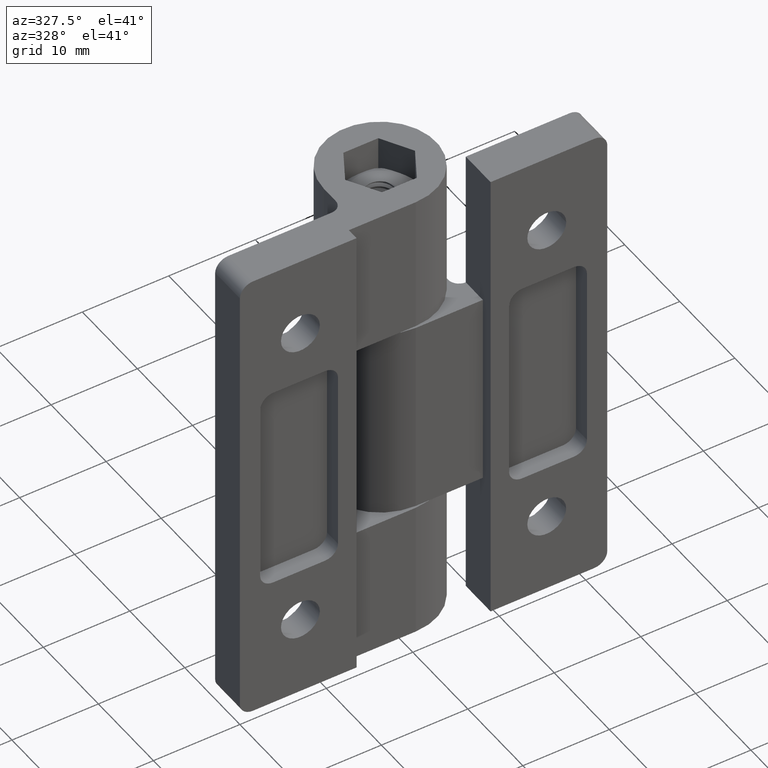
[diagram: clean part render]
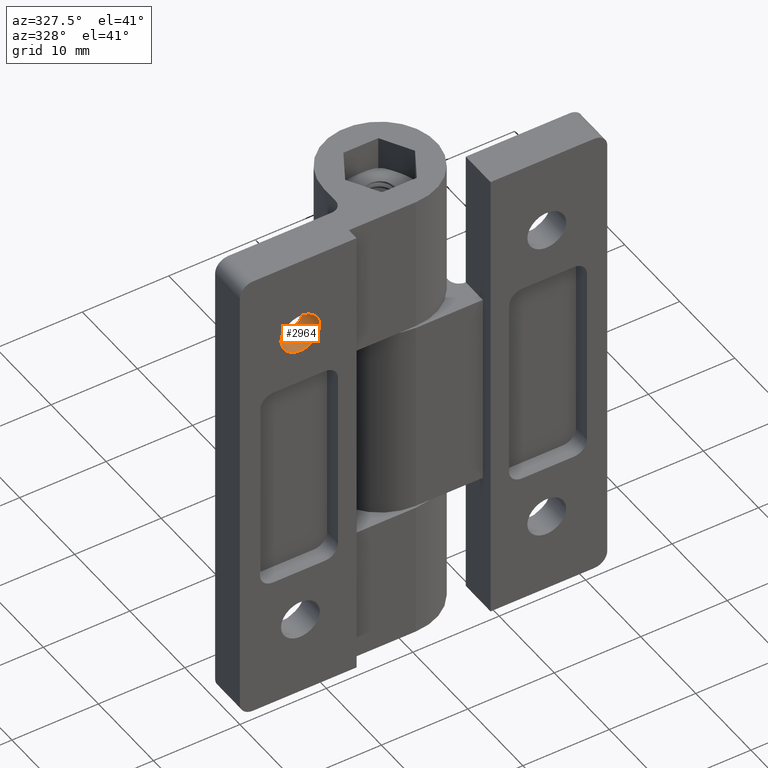
[diagram: same view with one face highlighted and labeled with its STEP entity id]
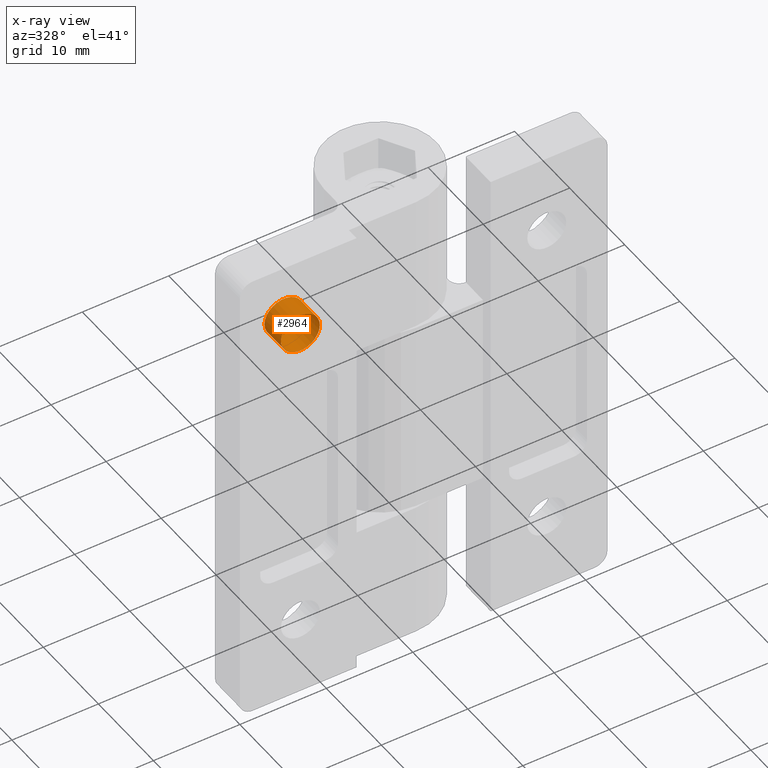
[diagram: x-ray of the same camera — body ghosted, the highlighted face saturated]
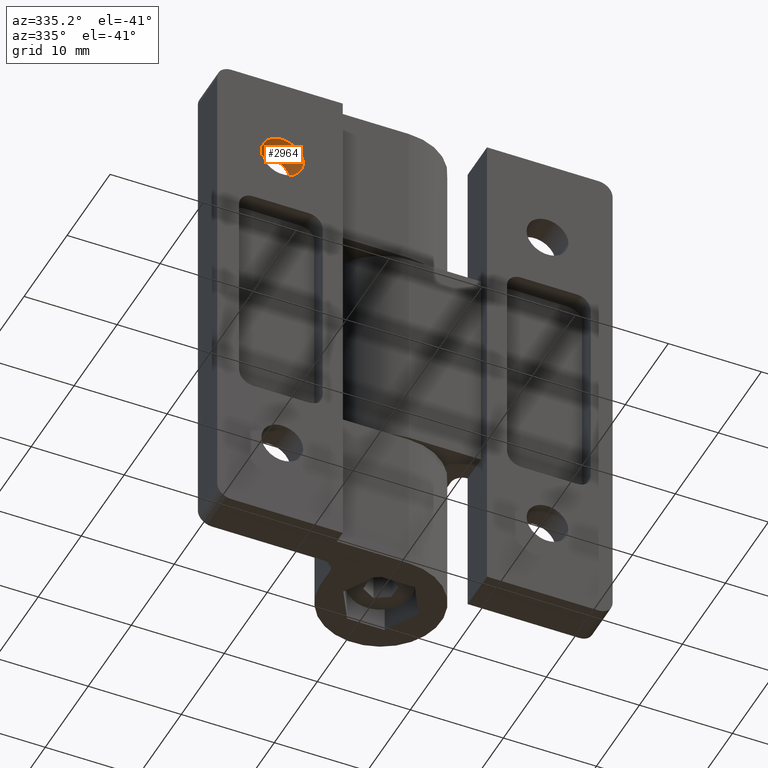
[diagram: same view with one face highlighted and labeled with its STEP entity id]
A machine part, auxiliary view. The second image highlights one B-rep face of the part: STEP entity #2964.
The next image is the same camera in x-ray: the body ghosted, the highlighted face saturated — about 0% of this face is hidden behind the body in this view.
A second angle (auxiliary view) of the same face is appended — the face is thin or edge-on in the first view.
In plain terms, the highlighted cylindrical surface (bore or boss wall) has radius 2.25 mm, axis along (0, -1, 0).
Its self-contained STEP definition (entity closure, byte-faithful):
#322=FACE_BOUND('',#568,.T.);
#446=FACE_OUTER_BOUND('',#567,.T.);
#567=EDGE_LOOP('',(#2059));
#568=EDGE_LOOP('',(#2060));
#1010=CIRCLE('',#3106,2.25);
#1011=CIRCLE('',#3109,2.25);
#1111=VERTEX_POINT('',#3918);
#1112=VERTEX_POINT('',#3922);
#1533=EDGE_CURVE('',#1111,#1111,#1010,.T.);
#1534=EDGE_CURVE('',#1112,#1112,#1011,.T.);
#2059=ORIENTED_EDGE('',*,*,#1534,.F.);
#2060=ORIENTED_EDGE('',*,*,#1533,.F.);
#2916=CYLINDRICAL_SURFACE('',#3108,2.25);
#2964=ADVANCED_FACE('',(#446,#322),#2916,.F.);
#3106=AXIS2_PLACEMENT_3D('',#3919,#3394,#3395);
#3108=AXIS2_PLACEMENT_3D('',#3921,#3398,#3399);
#3109=AXIS2_PLACEMENT_3D('',#3923,#3400,#3401);
#3394=DIRECTION('center_axis',(0.,0.,-1.));
#3395=DIRECTION('ref_axis',(1.,0.,0.));
#3398=DIRECTION('center_axis',(0.,0.,-1.));
#3399=DIRECTION('ref_axis',(1.,0.,0.));
#3400=DIRECTION('center_axis',(-3.42387545668842E-33,0.,1.));
#3401=DIRECTION('ref_axis',(1.,0.,3.42387545668842E-33));
#3918=CARTESIAN_POINT('',(4.74999999998473,-18.5,3.));
#3919=CARTESIAN_POINT('Origin',(6.99999999998473,-18.5,3.));
#3921=CARTESIAN_POINT('Origin',(6.99999999998473,-18.5,-2.5));
#3922=CARTESIAN_POINT('',(4.74999999998473,-18.5,0.));
#3923=CARTESIAN_POINT('Origin',(6.99999999998473,-18.5,0.));